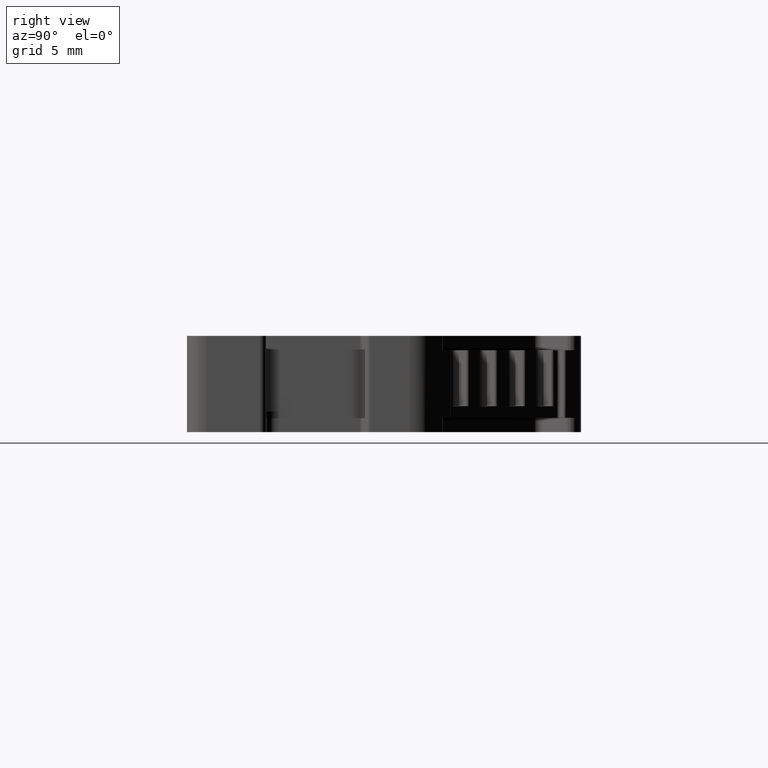
[diagram: clean part render]
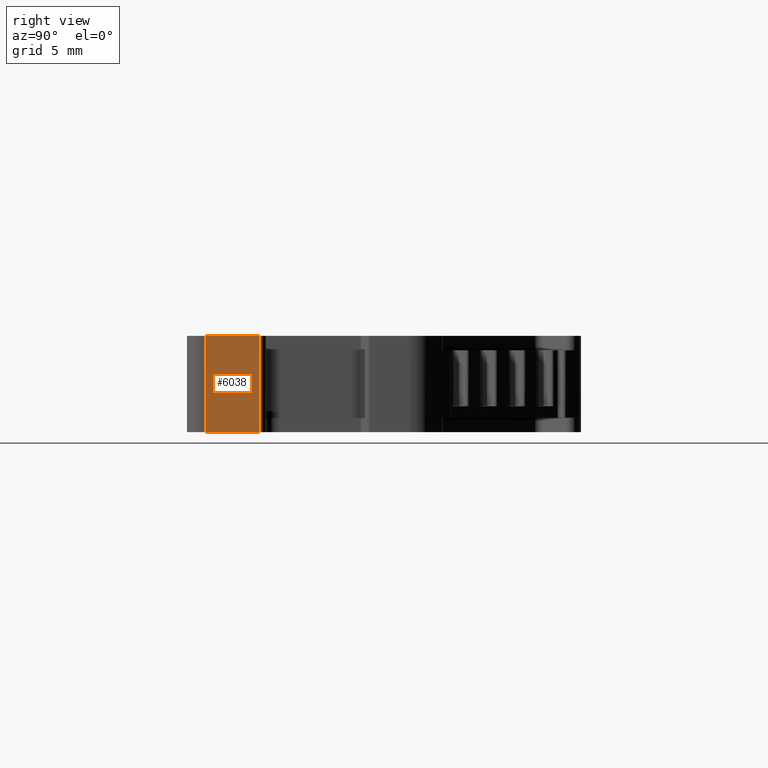
[diagram: same view with one face highlighted and labeled with its STEP entity id]
A machine part, right view. The second image highlights one B-rep face of the part: STEP entity #6038.
In plain terms, the highlighted planar face has unit normal (1, -0, 0).
Its self-contained STEP definition (entity closure, byte-faithful):
#1091 = VERTEX_POINT ( 'NONE', #4584 ) ;
#1103 = VERTEX_POINT ( 'NONE', #4613 ) ;
#1105 = VERTEX_POINT ( 'NONE', #4594 ) ;
#1129 = VERTEX_POINT ( 'NONE', #4644 ) ;
#2605 = EDGE_CURVE ( 'NONE', #1105, #1091, #19804, .T. ) ;
#4584 = CARTESIAN_POINT ( 'NONE',  ( -234.1365920300655700, -22.76445712408548500, 8.498021178400511700 ) ) ;
#4594 = CARTESIAN_POINT ( 'NONE',  ( -234.1365920300587500, -22.76445712408623100, 1.001658111825508100 ) ) ;
#4613 = CARTESIAN_POINT ( 'NONE',  ( -234.1365920300656000, -26.93266702404786300, 8.498021178400511700 ) ) ;
#4644 = CARTESIAN_POINT ( 'NONE',  ( -234.1365920300656000, -26.93266702404786300, 1.001658111825506300 ) ) ;
#6038 = ADVANCED_FACE ( 'NONE', ( #11941 ), #11925, .T. ) ;
#6246 = EDGE_CURVE ( 'NONE', #1091, #1103, #13045, .T. ) ;
#6265 = EDGE_CURVE ( 'NONE', #1129, #1105, #13093, .T. ) ;
#6285 = EDGE_CURVE ( 'NONE', #1129, #1103, #13225, .T. ) ;
#11905 = DIRECTION ( 'NONE',  ( 0.0000000000000000000, 0.0000000000000000000, -1.000000000000000000 ) ) ;
#11907 = DIRECTION ( 'NONE',  ( 1.000000000000000000, -0.0000000000000000000, 0.0000000000000000000 ) ) ;
#11925 = PLANE ( 'NONE',  #23952 ) ;
#11933 = CARTESIAN_POINT ( 'NONE',  ( -234.1365920300655700, -98.48484845154556000, -32.23344842643049200 ) ) ;
#11941 = FACE_OUTER_BOUND ( 'NONE', #20636, .T. ) ;
#13038 = CARTESIAN_POINT ( 'NONE',  ( -234.1365920300655700, -98.48484845154556000, 8.498021178400511700 ) ) ;
#13045 = LINE ( 'NONE', #13038, #24201 ) ;
#13053 = DIRECTION ( 'NONE',  ( -0.0000000000000000000, -1.000000000000000000, -0.0000000000000000000 ) ) ;
#13093 = LINE ( 'NONE', #13115, #24231 ) ;
#13094 = DIRECTION ( 'NONE',  ( -0.0000000000000000000, 1.000000000000000000, 0.0000000000000000000 ) ) ;
#13115 = CARTESIAN_POINT ( 'NONE',  ( -234.1365920300655700, -57.01993662607642200, 1.001658111825507000 ) ) ;
#13225 = LINE ( 'NONE', #13236, #24295 ) ;
#13227 = DIRECTION ( 'NONE',  ( 0.0000000000000000000, 0.0000000000000000000, 1.000000000000000000 ) ) ;
#13236 = CARTESIAN_POINT ( 'NONE',  ( -234.1365920300656000, -26.93266702404786300, -9.734692868469334600 ) ) ;
#17760 = VECTOR ( 'NONE', #19878, 1000.000000000000000 ) ;
#18215 = ORIENTED_EDGE ( 'NONE', *, *, #2605, .T. ) ;
#18239 = ORIENTED_EDGE ( 'NONE', *, *, #6265, .T. ) ;
#18279 = ORIENTED_EDGE ( 'NONE', *, *, #6285, .F. ) ;
#18297 = ORIENTED_EDGE ( 'NONE', *, *, #6246, .T. ) ;
#19804 = LINE ( 'NONE', #19827, #17760 ) ;
#19827 = CARTESIAN_POINT ( 'NONE',  ( -234.1365920300655700, -22.76445712408697700, -32.23344842643049200 ) ) ;
#19878 = DIRECTION ( 'NONE',  ( -0.0000000000000000000, -0.0000000000000000000, 1.000000000000000000 ) ) ;
#20636 = EDGE_LOOP ( 'NONE', ( #18297, #18279, #18239, #18215 ) ) ;
#23952 = AXIS2_PLACEMENT_3D ( 'NONE', #11933, #11907, #11905 ) ;
#24201 = VECTOR ( 'NONE', #13053, 1000.000000000000000 ) ;
#24231 = VECTOR ( 'NONE', #13094, 1000.000000000000000 ) ;
#24295 = VECTOR ( 'NONE', #13227, 1000.000000000000000 ) ;